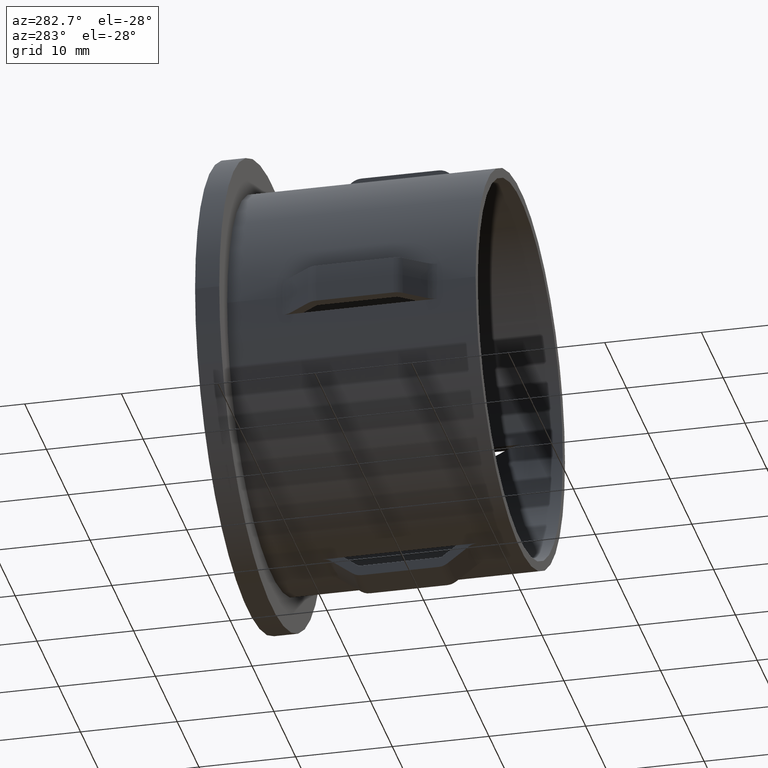
[diagram: clean part render]
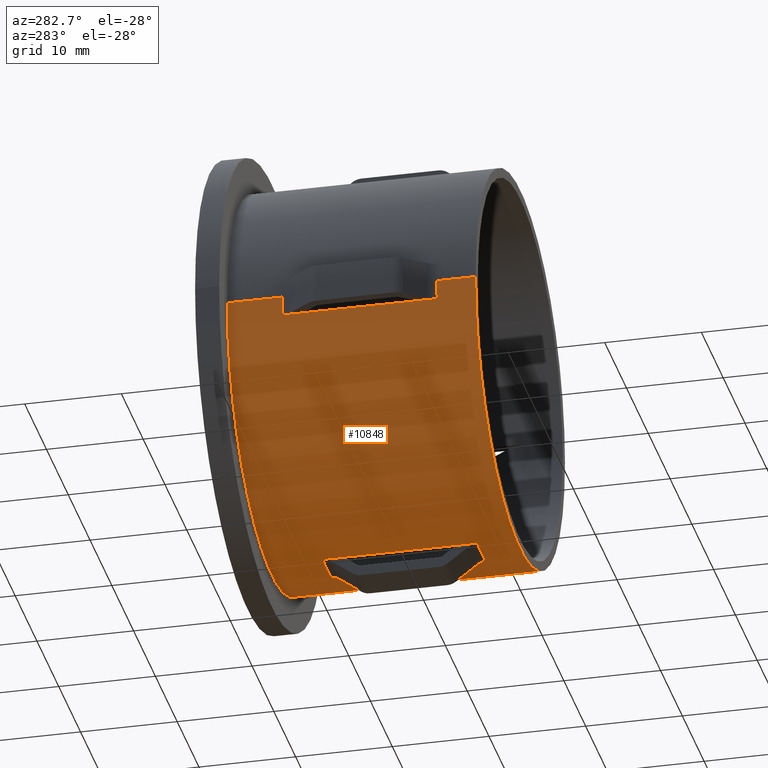
[diagram: same view with one face highlighted and labeled with its STEP entity id]
A machine part, auxiliary view. The second image highlights one B-rep face of the part: STEP entity #10848.
In plain terms, the highlighted cylindrical surface (partial cylindrical patch) has radius 20.5 mm, axis along (-0, 1, -0).
Its self-contained STEP definition (entity closure, byte-faithful):
#39 = EDGE_CURVE ( 'NONE', #1652, #6915, #13381, .T. ) ;
#40 = AXIS2_PLACEMENT_3D ( 'NONE', #8208, #2372, #13912 ) ;
#106 = VECTOR ( 'NONE', #12068, 1000.000000000000000 ) ;
#205 = EDGE_CURVE ( 'NONE', #7049, #451, #14842, .T. ) ;
#326 = DIRECTION ( 'NONE',  ( -1.714505518806297100E-016, 1.000000000000000000, -0.0000000000000000000 ) ) ;
#360 = AXIS2_PLACEMENT_3D ( 'NONE', #5002, #8445, #6263 ) ;
#451 = VERTEX_POINT ( 'NONE', #2993 ) ;
#688 = ORIENTED_EDGE ( 'NONE', *, *, #6816, .T. ) ;
#706 = EDGE_CURVE ( 'NONE', #14645, #6307, #13000, .T. ) ;
#713 = DIRECTION ( 'NONE',  ( -1.714505518806297100E-016, 1.000000000000000000, -0.0000000000000000000 ) ) ;
#857 = VERTEX_POINT ( 'NONE', #14539 ) ;
#875 = EDGE_LOOP ( 'NONE', ( #14853, #688, #10096, #9521, #5949, #8137, #10206, #3521 ) ) ;
#938 = CARTESIAN_POINT ( 'NONE',  ( -20.40220576310316500, 20.00000000000000000, -2.000000000000000000 ) ) ;
#1052 = ORIENTED_EDGE ( 'NONE', *, *, #2742, .T. ) ;
#1069 = VERTEX_POINT ( 'NONE', #9897 ) ;
#1241 = LINE ( 'NONE', #9681, #1431 ) ;
#1244 = EDGE_CURVE ( 'NONE', #3583, #6307, #5529, .T. ) ;
#1431 = VECTOR ( 'NONE', #10862, 1000.000000000000000 ) ;
#1433 = DIRECTION ( 'NONE',  ( -1.714505518806297100E-016, 1.000000000000000000, -0.0000000000000000000 ) ) ;
#1465 = CARTESIAN_POINT ( 'NONE',  ( 20.40220576310317200, 17.83333333333333200, -2.000000000000000000 ) ) ;
#1499 = LINE ( 'NONE', #11616, #6194 ) ;
#1533 = VECTOR ( 'NONE', #6109, 1000.000000000000000 ) ;
#1563 = EDGE_CURVE ( 'NONE', #7747, #5539, #3545, .T. ) ;
#1601 = DIRECTION ( 'NONE',  ( -1.714505518806297100E-016, 1.000000000000000000, -0.0000000000000000000 ) ) ;
#1652 = VERTEX_POINT ( 'NONE', #938 ) ;
#1685 = EDGE_CURVE ( 'NONE', #6837, #2953, #4987, .T. ) ;
#1705 = EDGE_CURVE ( 'NONE', #2953, #14645, #9516, .T. ) ;
#1756 = LINE ( 'NONE', #4116, #9010 ) ;
#1955 = EDGE_CURVE ( 'NONE', #8662, #10443, #10053, .T. ) ;
#2058 = DIRECTION ( 'NONE',  ( -0.0000000000000000000, -1.000000000000000000, -0.0000000000000000000 ) ) ;
#2165 = EDGE_CURVE ( 'NONE', #12092, #7049, #11131, .T. ) ;
#2222 = DIRECTION ( 'NONE',  ( -1.714505518806297100E-016, 1.000000000000000000, -0.0000000000000000000 ) ) ;
#2372 = DIRECTION ( 'NONE',  ( -1.714505518806297100E-016, 1.000000000000000000, -0.0000000000000000000 ) ) ;
#2481 = VECTOR ( 'NONE', #2222, 1000.000000000000000 ) ;
#2549 = ORIENTED_EDGE ( 'NONE', *, *, #5547, .F. ) ;
#2564 = EDGE_CURVE ( 'NONE', #3058, #12092, #4971, .T. ) ;
#2699 = CARTESIAN_POINT ( 'NONE',  ( 20.49999999999999600, 25.69999999999999900, 2.510525938252074500E-015 ) ) ;
#2735 = CYLINDRICAL_SURFACE ( 'NONE', #360, 20.50000000000000400 ) ;
#2742 = EDGE_CURVE ( 'NONE', #10899, #8662, #10408, .T. ) ;
#2779 = CARTESIAN_POINT ( 'NONE',  ( 3.904173995681768100E-015, 3.999999999999996400, 0.0000000000000000000 ) ) ;
#2807 = CARTESIAN_POINT ( 'NONE',  ( 20.40220576310317200, 20.00000000000000000, -2.000000000000000000 ) ) ;
#2953 = VERTEX_POINT ( 'NONE', #6431 ) ;
#2993 = CARTESIAN_POINT ( 'NONE',  ( -1.999999999999996200, 3.999999999999993300, -20.40220576310316900 ) ) ;
#3002 = DIRECTION ( 'NONE',  ( -0.0000000000000000000, -1.000000000000000000, -0.0000000000000000000 ) ) ;
#3040 = ORIENTED_EDGE ( 'NONE', *, *, #13722, .T. ) ;
#3058 = VERTEX_POINT ( 'NONE', #10145 ) ;
#3129 = CARTESIAN_POINT ( 'NONE',  ( 20.50000000000000400, 4.528936159929513800E-017, 2.510525938252074500E-015 ) ) ;
#3350 = VECTOR ( 'NONE', #2058, 1000.000000000000000 ) ;
#3444 = VECTOR ( 'NONE', #7291, 1000.000000000000000 ) ;
#3521 = ORIENTED_EDGE ( 'NONE', *, *, #2564, .F. ) ;
#3545 = LINE ( 'NONE', #6398, #3729 ) ;
#3583 = VERTEX_POINT ( 'NONE', #14230 ) ;
#3716 = CARTESIAN_POINT ( 'NONE',  ( 4.589976203204287100E-015, -3.469446951953614200E-015, 0.0000000000000000000 ) ) ;
#3729 = VECTOR ( 'NONE', #9948, 1000.000000000000000 ) ;
#3820 = DIRECTION ( 'NONE',  ( -1.000000000000000000, -1.692413147294446200E-016, 0.0000000000000000000 ) ) ;
#3849 = CARTESIAN_POINT ( 'NONE',  ( 2.000000000000004900, 51.72464896776082800, -20.40220576310316900 ) ) ;
#4101 = EDGE_CURVE ( 'NONE', #13700, #10450, #7689, .T. ) ;
#4116 = CARTESIAN_POINT ( 'NONE',  ( -20.50000000000000400, 28.19999999999999600, 0.0000000000000000000 ) ) ;
#4202 = CARTESIAN_POINT ( 'NONE',  ( 20.40220576310317200, 20.00000000000000000, -2.000000000000000000 ) ) ;
#4332 = CARTESIAN_POINT ( 'NONE',  ( 2.000000000000004900, 20.00000000000000000, -20.40220576310316900 ) ) ;
#4372 = CARTESIAN_POINT ( 'NONE',  ( -20.50000000000000000, 19.99999999999998900, 0.0000000000000000000 ) ) ;
#4492 = CARTESIAN_POINT ( 'NONE',  ( -20.40220576310316500, 20.00000000000000000, -2.000000000000000000 ) ) ;
#4493 = AXIS2_PLACEMENT_3D ( 'NONE', #10000, #11159, #12409 ) ;
#4925 = CARTESIAN_POINT ( 'NONE',  ( 1.836970198721037800E-016, 25.69999999999999600, 0.0000000000000000000 ) ) ;
#4971 = LINE ( 'NONE', #3849, #6048 ) ;
#4987 = LINE ( 'NONE', #13721, #14621 ) ;
#5002 = CARTESIAN_POINT ( 'NONE',  ( -2.449293598294708900E-016, 28.19999999999999900, 0.0000000000000000000 ) ) ;
#5037 = CIRCLE ( 'NONE', #9106, 20.50000000000000000 ) ;
#5107 = ORIENTED_EDGE ( 'NONE', *, *, #39, .T. ) ;
#5210 = CARTESIAN_POINT ( 'NONE',  ( 2.000000000000004900, 3.999999999999993300, -20.40220576310316900 ) ) ;
#5220 = CARTESIAN_POINT ( 'NONE',  ( -1.999999999999996200, 17.83333333333333600, -20.40220576310316900 ) ) ;
#5295 = CIRCLE ( 'NONE', #7858, 20.49999999999999600 ) ;
#5351 = EDGE_CURVE ( 'NONE', #10821, #1069, #5295, .T. ) ;
#5387 = CARTESIAN_POINT ( 'NONE',  ( 20.40220576310317200, 6.166666666666667900, -2.000000000000000000 ) ) ;
#5414 = LINE ( 'NONE', #9571, #3444 ) ;
#5463 = DIRECTION ( 'NONE',  ( -1.714505518806297100E-016, 1.000000000000000000, -0.0000000000000000000 ) ) ;
#5494 = ORIENTED_EDGE ( 'NONE', *, *, #1244, .T. ) ;
#5529 = LINE ( 'NONE', #7969, #2481 ) ;
#5539 = VERTEX_POINT ( 'NONE', #10244 ) ;
#5547 = EDGE_CURVE ( 'NONE', #1652, #6837, #1499, .T. ) ;
#5597 = ORIENTED_EDGE ( 'NONE', *, *, #1685, .F. ) ;
#5635 = AXIS2_PLACEMENT_3D ( 'NONE', #2779, #1601, #11934 ) ;
#5658 = ORIENTED_EDGE ( 'NONE', *, *, #1563, .F. ) ;
#5767 = CIRCLE ( 'NONE', #11714, 20.50000000000000000 ) ;
#5781 = FACE_OUTER_BOUND ( 'NONE', #14423, .T. ) ;
#5872 = DIRECTION ( 'NONE',  ( -0.0000000000000000000, -1.000000000000000000, -0.0000000000000000000 ) ) ;
#5873 = DIRECTION ( 'NONE',  ( 0.0000000000000000000, -1.000000000000000000, 0.0000000000000000000 ) ) ;
#5895 = ORIENTED_EDGE ( 'NONE', *, *, #706, .F. ) ;
#5949 = ORIENTED_EDGE ( 'NONE', *, *, #9418, .T. ) ;
#6048 = VECTOR ( 'NONE', #10894, 1000.000000000000000 ) ;
#6109 = DIRECTION ( 'NONE',  ( 0.0000000000000000000, -1.000000000000000000, 0.0000000000000000000 ) ) ;
#6194 = VECTOR ( 'NONE', #14929, 1000.000000000000000 ) ;
#6263 = DIRECTION ( 'NONE',  ( -1.000000000000000000, -1.692413147294445700E-016, 0.0000000000000000000 ) ) ;
#6301 = ORIENTED_EDGE ( 'NONE', *, *, #1705, .F. ) ;
#6307 = VERTEX_POINT ( 'NONE', #14387 ) ;
#6325 = FACE_BOUND ( 'NONE', #875, .T. ) ;
#6398 = CARTESIAN_POINT ( 'NONE',  ( 20.50000000000000400, 28.20000000000000300, 2.510525938252074500E-015 ) ) ;
#6431 = CARTESIAN_POINT ( 'NONE',  ( -20.40220576310316500, 6.166666666666660700, -2.000000000000000000 ) ) ;
#6460 = CARTESIAN_POINT ( 'NONE',  ( -1.999999999999996200, 20.00000000000000000, -20.40220576310316900 ) ) ;
#6533 = CIRCLE ( 'NONE', #4493, 20.50000000000000700 ) ;
#6706 = DIRECTION ( 'NONE',  ( 0.0000000000000000000, -1.000000000000000000, 0.0000000000000000000 ) ) ;
#6816 = EDGE_CURVE ( 'NONE', #857, #14707, #11636, .T. ) ;
#6837 = VERTEX_POINT ( 'NONE', #13502 ) ;
#6915 = VERTEX_POINT ( 'NONE', #4372 ) ;
#7049 = VERTEX_POINT ( 'NONE', #5210 ) ;
#7212 = EDGE_CURVE ( 'NONE', #14707, #13700, #10348, .T. ) ;
#7227 = ORIENTED_EDGE ( 'NONE', *, *, #12225, .T. ) ;
#7291 = DIRECTION ( 'NONE',  ( -0.0000000000000000000, -1.000000000000000000, -0.0000000000000000000 ) ) ;
#7534 = ORIENTED_EDGE ( 'NONE', *, *, #7603, .F. ) ;
#7552 = DIRECTION ( 'NONE',  ( -1.000000000000000000, -1.692413147294446000E-016, 0.0000000000000000000 ) ) ;
#7603 = EDGE_CURVE ( 'NONE', #5539, #10443, #6533, .T. ) ;
#7689 = LINE ( 'NONE', #13124, #1533 ) ;
#7747 = VERTEX_POINT ( 'NONE', #3129 ) ;
#7770 = AXIS2_PLACEMENT_3D ( 'NONE', #9794, #13464, #9992 ) ;
#7858 = AXIS2_PLACEMENT_3D ( 'NONE', #4925, #1433, #3820 ) ;
#7969 = CARTESIAN_POINT ( 'NONE',  ( -20.50000000000000400, 28.19999999999999600, 0.0000000000000000000 ) ) ;
#8057 = CARTESIAN_POINT ( 'NONE',  ( 20.40220576310317200, 3.999999999999989800, -2.000000000000000000 ) ) ;
#8137 = ORIENTED_EDGE ( 'NONE', *, *, #205, .F. ) ;
#8208 = CARTESIAN_POINT ( 'NONE',  ( 3.904173995681768100E-015, 3.999999999999996400, 0.0000000000000000000 ) ) ;
#8297 = ORIENTED_EDGE ( 'NONE', *, *, #11685, .F. ) ;
#8445 = DIRECTION ( 'NONE',  ( -1.714505518806297100E-016, 1.000000000000000000, -0.0000000000000000000 ) ) ;
#8491 = ORIENTED_EDGE ( 'NONE', *, *, #1955, .T. ) ;
#8570 = DIRECTION ( 'NONE',  ( -0.0000000000000000000, -1.000000000000000000, -0.0000000000000000000 ) ) ;
#8662 = VERTEX_POINT ( 'NONE', #5387 ) ;
#8680 = ORIENTED_EDGE ( 'NONE', *, *, #5351, .F. ) ;
#8859 = DIRECTION ( 'NONE',  ( -0.0000000000000000000, -1.000000000000000000, -0.0000000000000000000 ) ) ;
#9010 = VECTOR ( 'NONE', #713, 1000.000000000000000 ) ;
#9106 = AXIS2_PLACEMENT_3D ( 'NONE', #9184, #10391, #11566 ) ;
#9184 = CARTESIAN_POINT ( 'NONE',  ( 1.160965165591693700E-015, 19.99999999999999300, 0.0000000000000000000 ) ) ;
#9418 = EDGE_CURVE ( 'NONE', #10450, #451, #5414, .T. ) ;
#9516 = LINE ( 'NONE', #4492, #11886 ) ;
#9521 = ORIENTED_EDGE ( 'NONE', *, *, #4101, .T. ) ;
#9571 = CARTESIAN_POINT ( 'NONE',  ( -1.999999999999996200, 20.00000000000000000, -20.40220576310316900 ) ) ;
#9614 = CARTESIAN_POINT ( 'NONE',  ( 20.40220576310317200, 20.00000000000000000, -2.000000000000000000 ) ) ;
#9681 = CARTESIAN_POINT ( 'NONE',  ( 20.50000000000000400, 28.20000000000000300, 2.510525938252074500E-015 ) ) ;
#9794 = CARTESIAN_POINT ( 'NONE',  ( 1.160965165591693700E-015, 19.99999999999999300, 0.0000000000000000000 ) ) ;
#9897 = CARTESIAN_POINT ( 'NONE',  ( -20.49999999999999600, 25.69999999999999200, 0.0000000000000000000 ) ) ;
#9948 = DIRECTION ( 'NONE',  ( -1.714505518806297100E-016, 1.000000000000000000, -0.0000000000000000000 ) ) ;
#9992 = DIRECTION ( 'NONE',  ( -1.000000000000000000, -1.692413147294446000E-016, 0.0000000000000000000 ) ) ;
#10000 = CARTESIAN_POINT ( 'NONE',  ( 3.904173995681768100E-015, 3.999999999999996400, 0.0000000000000000000 ) ) ;
#10053 = LINE ( 'NONE', #2807, #106 ) ;
#10096 = ORIENTED_EDGE ( 'NONE', *, *, #7212, .T. ) ;
#10145 = CARTESIAN_POINT ( 'NONE',  ( 2.000000000000004900, 17.83333333333333900, -20.40220576310316900 ) ) ;
#10169 = CARTESIAN_POINT ( 'NONE',  ( -20.40220576310316500, 3.999999999999989800, -2.000000000000000000 ) ) ;
#10206 = ORIENTED_EDGE ( 'NONE', *, *, #2165, .F. ) ;
#10244 = CARTESIAN_POINT ( 'NONE',  ( 20.50000000000001400, 4.000000000000000000, 2.510525938252075700E-015 ) ) ;
#10348 = LINE ( 'NONE', #6460, #13989 ) ;
#10391 = DIRECTION ( 'NONE',  ( -1.714505518806297100E-016, 1.000000000000000000, -0.0000000000000000000 ) ) ;
#10408 = LINE ( 'NONE', #12764, #13140 ) ;
#10443 = VERTEX_POINT ( 'NONE', #8057 ) ;
#10450 = VERTEX_POINT ( 'NONE', #14932 ) ;
#10650 = LINE ( 'NONE', #4202, #13018 ) ;
#10821 = VERTEX_POINT ( 'NONE', #2699 ) ;
#10822 = VECTOR ( 'NONE', #8570, 1000.000000000000000 ) ;
#10848 = ADVANCED_FACE ( 'NONE', ( #5781, #6325 ), #2735, .T. ) ;
#10859 = DIRECTION ( 'NONE',  ( -1.000000000000000000, -1.714505518806297600E-016, 0.0000000000000000000 ) ) ;
#10862 = DIRECTION ( 'NONE',  ( -1.714505518806297100E-016, 1.000000000000000000, -0.0000000000000000000 ) ) ;
#10894 = DIRECTION ( 'NONE',  ( 0.0000000000000000000, -1.000000000000000000, 0.0000000000000000000 ) ) ;
#10899 = VERTEX_POINT ( 'NONE', #1465 ) ;
#10951 = CARTESIAN_POINT ( 'NONE',  ( 2.000000000000004900, 20.00000000000000000, -20.40220576310316900 ) ) ;
#10980 = AXIS2_PLACEMENT_3D ( 'NONE', #12391, #5463, #7552 ) ;
#11131 = LINE ( 'NONE', #4332, #3350 ) ;
#11159 = DIRECTION ( 'NONE',  ( -1.714505518806297100E-016, 1.000000000000000000, -0.0000000000000000000 ) ) ;
#11549 = LINE ( 'NONE', #10951, #10822 ) ;
#11566 = DIRECTION ( 'NONE',  ( -1.000000000000000000, -1.692413147294446000E-016, 0.0000000000000000000 ) ) ;
#11616 = CARTESIAN_POINT ( 'NONE',  ( -20.40220576310316500, 20.00000000000000000, -2.000000000000000000 ) ) ;
#11636 = CIRCLE ( 'NONE', #10980, 20.50000000000000000 ) ;
#11685 = EDGE_CURVE ( 'NONE', #13313, #10821, #1241, .T. ) ;
#11714 = AXIS2_PLACEMENT_3D ( 'NONE', #3716, #326, #10859 ) ;
#11886 = VECTOR ( 'NONE', #5872, 1000.000000000000000 ) ;
#11934 = DIRECTION ( 'NONE',  ( -1.000000000000000000, -1.692413147294445500E-016, 0.0000000000000000000 ) ) ;
#12009 = VERTEX_POINT ( 'NONE', #9614 ) ;
#12063 = CARTESIAN_POINT ( 'NONE',  ( 2.000000000000004900, 6.166666666666660700, -20.40220576310316900 ) ) ;
#12068 = DIRECTION ( 'NONE',  ( -0.0000000000000000000, -1.000000000000000000, -0.0000000000000000000 ) ) ;
#12092 = VERTEX_POINT ( 'NONE', #12063 ) ;
#12225 = EDGE_CURVE ( 'NONE', #7747, #3583, #5767, .T. ) ;
#12391 = CARTESIAN_POINT ( 'NONE',  ( 1.160965165591693700E-015, 19.99999999999999300, 0.0000000000000000000 ) ) ;
#12409 = DIRECTION ( 'NONE',  ( -1.000000000000000000, -1.692413147294445500E-016, 0.0000000000000000000 ) ) ;
#12422 = CARTESIAN_POINT ( 'NONE',  ( 20.50000000000000000, 19.99999999999999600, 2.510525938252074500E-015 ) ) ;
#12589 = EDGE_CURVE ( 'NONE', #13313, #12009, #5037, .T. ) ;
#12764 = CARTESIAN_POINT ( 'NONE',  ( 20.40220576310317200, 51.72464896776082800, -2.000000000000000000 ) ) ;
#13000 = CIRCLE ( 'NONE', #40, 20.50000000000000700 ) ;
#13018 = VECTOR ( 'NONE', #8859, 1000.000000000000000 ) ;
#13124 = CARTESIAN_POINT ( 'NONE',  ( -1.999999999999996200, 51.72464896776082800, -20.40220576310316900 ) ) ;
#13140 = VECTOR ( 'NONE', #5873, 1000.000000000000000 ) ;
#13232 = EDGE_CURVE ( 'NONE', #12009, #10899, #10650, .T. ) ;
#13313 = VERTEX_POINT ( 'NONE', #12422 ) ;
#13381 = CIRCLE ( 'NONE', #7770, 20.50000000000000000 ) ;
#13464 = DIRECTION ( 'NONE',  ( -1.714505518806297100E-016, 1.000000000000000000, -0.0000000000000000000 ) ) ;
#13502 = CARTESIAN_POINT ( 'NONE',  ( -20.40220576310316500, 17.83333333333333900, -2.000000000000000000 ) ) ;
#13525 = EDGE_CURVE ( 'NONE', #857, #3058, #11549, .T. ) ;
#13700 = VERTEX_POINT ( 'NONE', #5220 ) ;
#13721 = CARTESIAN_POINT ( 'NONE',  ( -20.40220576310316500, 51.72464896776082800, -2.000000000000000000 ) ) ;
#13722 = EDGE_CURVE ( 'NONE', #6915, #1069, #1756, .T. ) ;
#13912 = DIRECTION ( 'NONE',  ( -1.000000000000000000, -1.692413147294445500E-016, 0.0000000000000000000 ) ) ;
#13989 = VECTOR ( 'NONE', #3002, 1000.000000000000000 ) ;
#14230 = CARTESIAN_POINT ( 'NONE',  ( -20.49999999999999600, -6.984183265506524500E-015, 0.0000000000000000000 ) ) ;
#14387 = CARTESIAN_POINT ( 'NONE',  ( -20.50000000000000400, 3.999999999999993300, 0.0000000000000000000 ) ) ;
#14410 = ORIENTED_EDGE ( 'NONE', *, *, #13232, .T. ) ;
#14423 = EDGE_LOOP ( 'NONE', ( #5658, #7227, #5494, #5895, #6301, #5597, #2549, #5107, #3040, #8680, #8297, #14674, #14410, #1052, #8491, #7534 ) ) ;
#14539 = CARTESIAN_POINT ( 'NONE',  ( 2.000000000000005300, 19.99999999999999300, -20.40220576310316900 ) ) ;
#14621 = VECTOR ( 'NONE', #6706, 1000.000000000000000 ) ;
#14645 = VERTEX_POINT ( 'NONE', #10169 ) ;
#14652 = CARTESIAN_POINT ( 'NONE',  ( -1.999999999999996200, 20.00000000000000000, -20.40220576310316900 ) ) ;
#14674 = ORIENTED_EDGE ( 'NONE', *, *, #12589, .T. ) ;
#14707 = VERTEX_POINT ( 'NONE', #14652 ) ;
#14842 = CIRCLE ( 'NONE', #5635, 20.50000000000000700 ) ;
#14853 = ORIENTED_EDGE ( 'NONE', *, *, #13525, .F. ) ;
#14929 = DIRECTION ( 'NONE',  ( -0.0000000000000000000, -1.000000000000000000, -0.0000000000000000000 ) ) ;
#14932 = CARTESIAN_POINT ( 'NONE',  ( -1.999999999999996200, 6.166666666666664300, -20.40220576310316900 ) ) ;